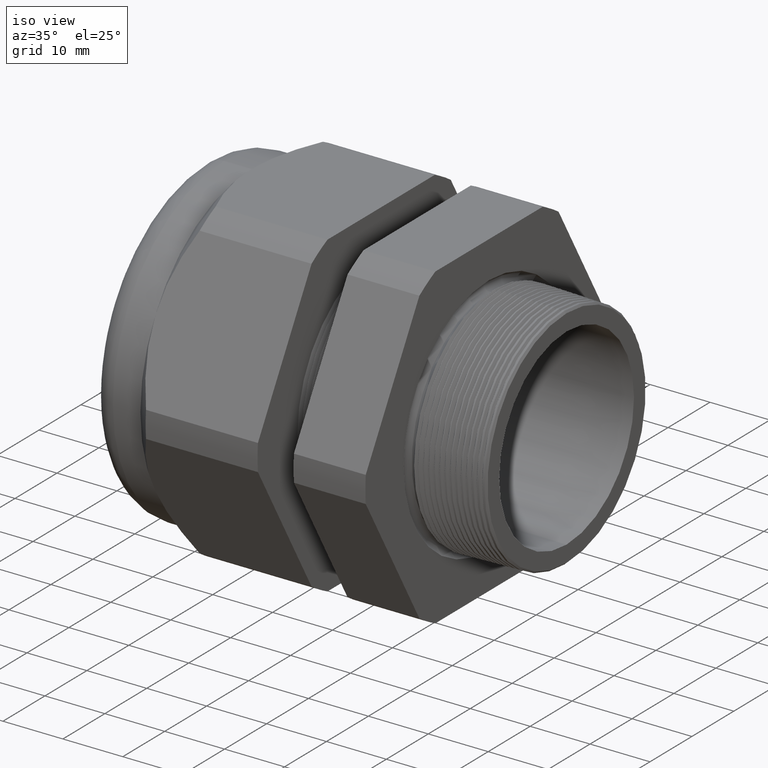
[diagram: clean part render]
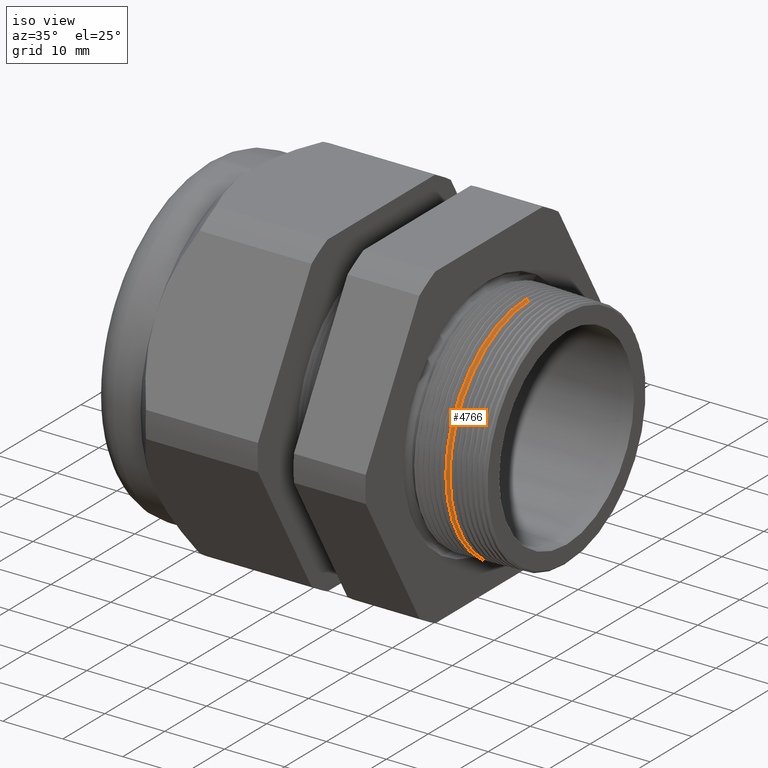
[diagram: same view with one face highlighted and labeled with its STEP entity id]
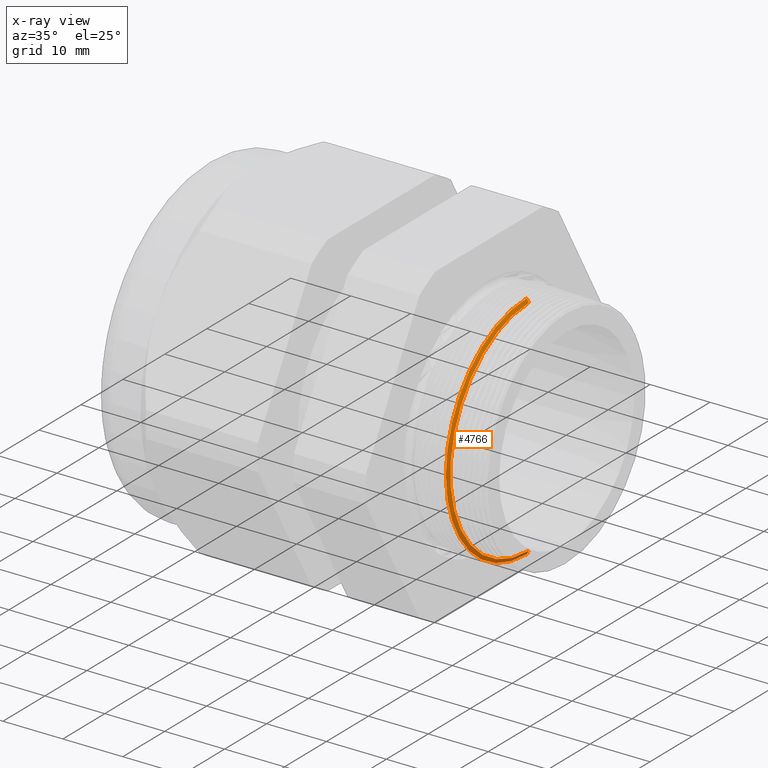
[diagram: x-ray of the same camera — body ghosted, the highlighted face saturated]
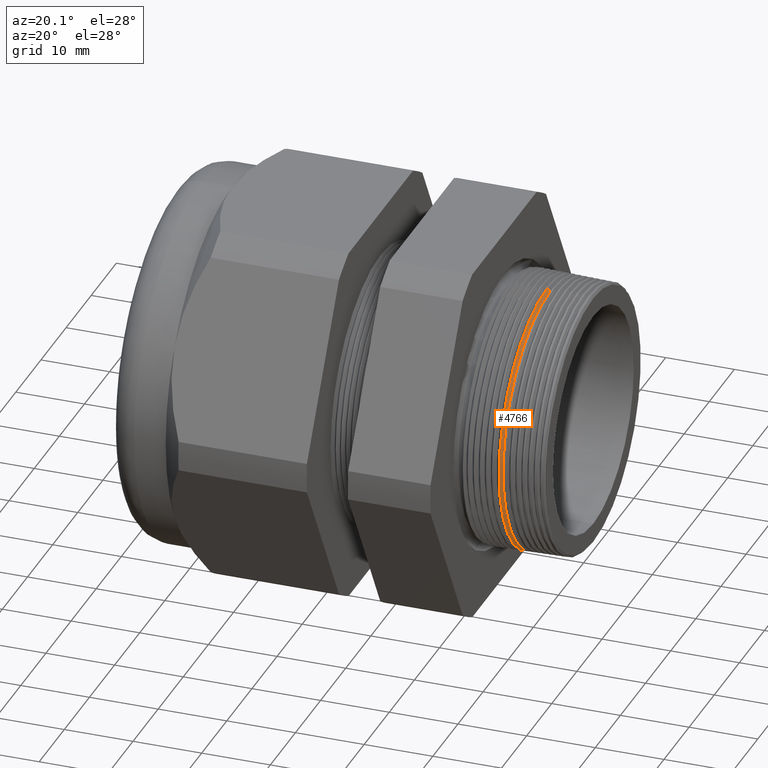
[diagram: same view with one face highlighted and labeled with its STEP entity id]
A machine part, iso view. The second image highlights one B-rep face of the part: STEP entity #4766.
The next image is the same camera in x-ray: the body ghosted, the highlighted face saturated — about 4% of this face is hidden behind the body in this view.
A second angle (auxiliary view) of the same face is appended — the face is thin or edge-on in the first view.
In plain terms, the highlighted conical surface has half-angle 61.5 deg.
Its self-contained STEP definition (entity closure, byte-faithful):
#84 = EDGE_CURVE ( 'NONE', #503, #91, #1012, .T. ) ;
#91 = VERTEX_POINT ( 'NONE', #1061 ) ;
#436 = VERTEX_POINT ( 'NONE', #1647 ) ;
#503 = VERTEX_POINT ( 'NONE', #1752 ) ;
#511 = EDGE_CURVE ( 'NONE', #436, #512, #1804, .T. ) ;
#512 = VERTEX_POINT ( 'NONE', #1796 ) ;
#538 = EDGE_CURVE ( 'NONE', #91, #512, #1867, .T. ) ;
#1012 = LINE ( 'NONE', #1071, #1070 ) ;
#1061 = CARTESIAN_POINT ( 'NONE',  ( -0.06146640013548347600, 0.0000000000000000000, 0.7599312641178270800 ) ) ;
#1069 = DIRECTION ( 'NONE',  ( -0.4771587602596179000, 0.0000000000000000000, 0.8788171126619600500 ) ) ;
#1070 = VECTOR ( 'NONE', #1069, 39.37007874015748900 ) ;
#1071 = CARTESIAN_POINT ( 'NONE',  ( -0.06499999999999996100, 0.0000000000000000000, 0.7664393454711850900 ) ) ;
#1647 = CARTESIAN_POINT ( 'NONE',  ( -0.04847073567907520000, 9.159914072917490700E-017, -0.7359962276773550600 ) ) ;
#1752 = CARTESIAN_POINT ( 'NONE',  ( -0.04847073567907520000, 0.0000000000000000000, 0.7359962276773550600 ) ) ;
#1796 = CARTESIAN_POINT ( 'NONE',  ( -0.06146640013548347600, 9.307631743436497100E-017, -0.7599312641178270800 ) ) ;
#1797 = DIRECTION ( 'NONE',  ( -0.4771587602596179000, 1.076240564057388100E-016, -0.8788171126619600500 ) ) ;
#1798 = VECTOR ( 'NONE', #1797, 39.37007874015748900 ) ;
#1799 = CARTESIAN_POINT ( 'NONE',  ( -0.06499999999999996100, 9.386174911718792200E-017, -0.7664393454711850900 ) ) ;
#1804 = LINE ( 'NONE', #1799, #1798 ) ;
#1863 = DIRECTION ( 'NONE',  ( 0.0000000000000000000, 0.0000000000000000000, 1.000000000000000000 ) ) ;
#1864 = DIRECTION ( 'NONE',  ( 1.000000000000000000, 0.0000000000000000000, 0.0000000000000000000 ) ) ;
#1865 = CARTESIAN_POINT ( 'NONE',  ( -0.06146640013548347600, 0.0000000000000000000, 0.0000000000000000000 ) ) ;
#1866 = AXIS2_PLACEMENT_3D ( 'NONE', #1865, #1864, #1863 ) ;
#1867 = CIRCLE ( 'NONE', #1866, 0.7599312641178270800 ) ;
#3049 = DIRECTION ( 'NONE',  ( 0.0000000000000000000, 0.0000000000000000000, 1.000000000000000000 ) ) ;
#3050 = DIRECTION ( 'NONE',  ( -1.000000000000000000, 0.0000000000000000000, 0.0000000000000000000 ) ) ;
#3051 = AXIS2_PLACEMENT_3D ( 'NONE', #3059, #3050, #3049 ) ;
#3053 = CONICAL_SURFACE ( 'NONE', #3051, 0.7664393454711850900, 1.073377489976501800 ) ;
#3054 = FACE_OUTER_BOUND ( 'NONE', #4822, .T. ) ;
#3059 = CARTESIAN_POINT ( 'NONE',  ( -0.06499999999999996100, 0.0000000000000000000, 0.0000000000000000000 ) ) ;
#3459 = DIRECTION ( 'NONE',  ( 0.0000000000000000000, 0.0000000000000000000, -1.000000000000000000 ) ) ;
#3460 = DIRECTION ( 'NONE',  ( 1.000000000000000000, 0.0000000000000000000, 0.0000000000000000000 ) ) ;
#3461 = CARTESIAN_POINT ( 'NONE',  ( -0.04847073567907520000, 0.0000000000000000000, 0.0000000000000000000 ) ) ;
#3462 = AXIS2_PLACEMENT_3D ( 'NONE', #3461, #3460, #3459 ) ;
#3463 = CIRCLE ( 'NONE', #3462, 0.7359962276773550600 ) ;
#4766 = ADVANCED_FACE ( 'NONE', ( #3054 ), #3053, .T. ) ;
#4815 = ORIENTED_EDGE ( 'NONE', *, *, #538, .T. ) ;
#4822 = EDGE_LOOP ( 'NONE', ( #5049, #5028, #5018, #4815 ) ) ;
#5018 = ORIENTED_EDGE ( 'NONE', *, *, #84, .T. ) ;
#5022 = EDGE_CURVE ( 'NONE', #503, #436, #3463, .T. ) ;
#5028 = ORIENTED_EDGE ( 'NONE', *, *, #5022, .F. ) ;
#5049 = ORIENTED_EDGE ( 'NONE', *, *, #511, .F. ) ;